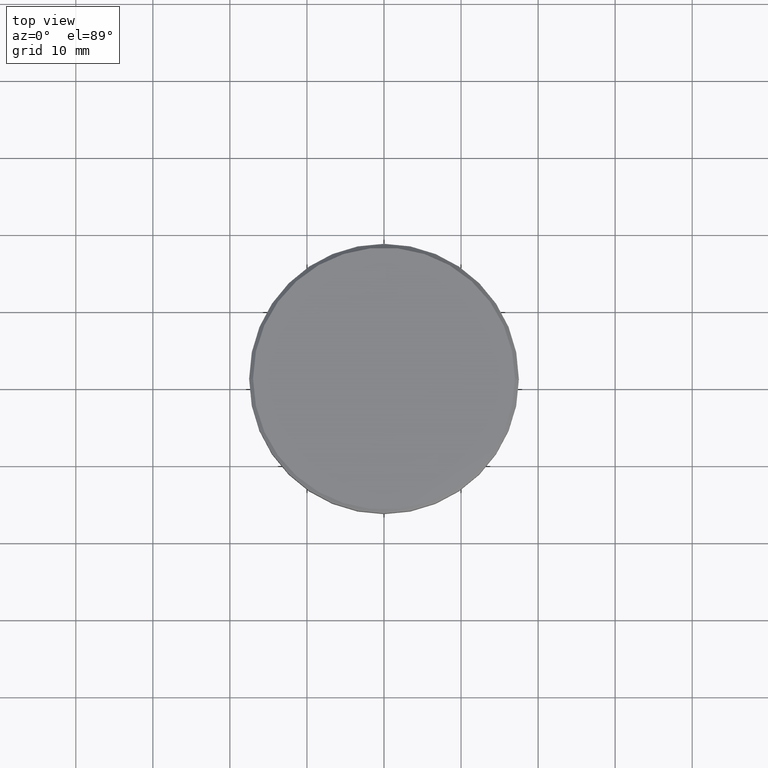
[diagram: clean part render]
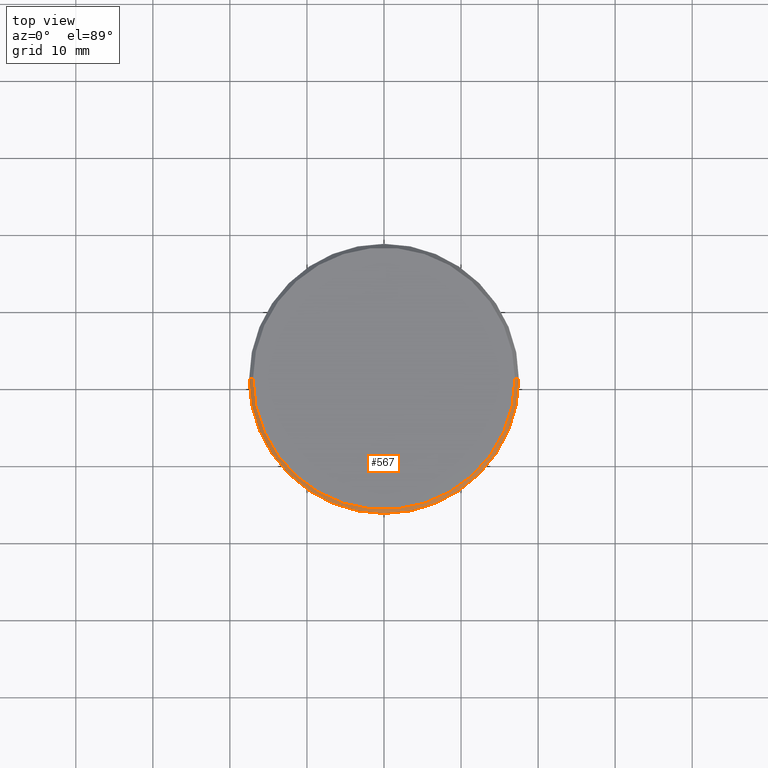
[diagram: same view with one face highlighted and labeled with its STEP entity id]
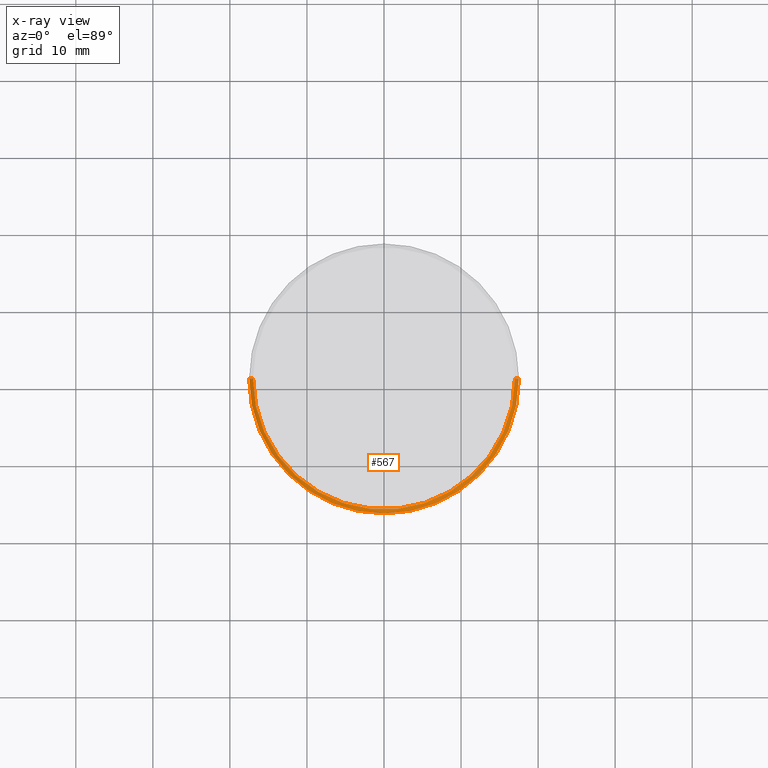
[diagram: x-ray of the same camera — body ghosted, the highlighted face saturated]
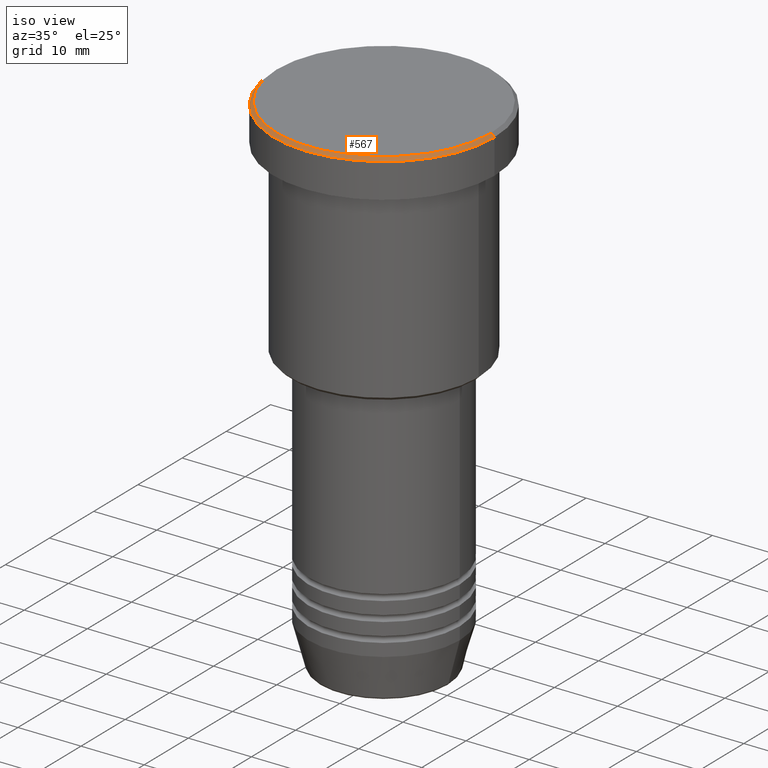
[diagram: same view with one face highlighted and labeled with its STEP entity id]
A machine part, top view. The second image highlights one B-rep face of the part: STEP entity #567.
The next image is the same camera in x-ray: the body ghosted, the highlighted face saturated — about 0% of this face is hidden behind the body in this view.
A second angle (iso view) of the same face is appended — the face is thin or edge-on in the first view.
In plain terms, the highlighted conical surface has half-angle 45 deg.
Its self-contained STEP definition (entity closure, byte-faithful):
#3 = ORIENTED_EDGE ( 'NONE', *, *, #921, .F. ) ;
#100 = CIRCLE ( 'NONE', #1054, 17.00000000000002842 ) ;
#109 = DIRECTION ( 'NONE',  ( -1.000000000000000000, 0.000000000000000000, 0.000000000000000000 ) ) ;
#115 = CARTESIAN_POINT ( 'NONE',  ( 0.000000000000000000, 0.000000000000000000, 0.000000000000000000 ) ) ;
#201 = CARTESIAN_POINT ( 'NONE',  ( 17.00000000000002842, 2.081899558550503830E-15, 0.000000000000000000 ) ) ;
#202 = CARTESIAN_POINT ( 'NONE',  ( -17.00000000000002842, 0.000000000000000000, 0.000000000000000000 ) ) ;
#208 = CARTESIAN_POINT ( 'NONE',  ( -17.50000000000000000, 2.143131898507868248E-15, -0.4999999999999864553 ) ) ;
#269 = VECTOR ( 'NONE', #611, 1000.000000000000000 ) ;
#301 = AXIS2_PLACEMENT_3D ( 'NONE', #788, #1170, #690 ) ;
#323 = AXIS2_PLACEMENT_3D ( 'NONE', #115, #489, #109 ) ;
#333 = CARTESIAN_POINT ( 'NONE',  ( 0.000000000000000000, 0.000000000000000000, 0.000000000000000000 ) ) ;
#350 = VERTEX_POINT ( 'NONE', #793 ) ;
#368 = EDGE_CURVE ( 'NONE', #1051, #548, #1074, .T. ) ;
#376 = FACE_OUTER_BOUND ( 'NONE', #638, .T. ) ;
#435 = EDGE_CURVE ( 'NONE', #604, #350, #100, .T. ) ;
#437 = LINE ( 'NONE', #711, #269 ) ;
#489 = DIRECTION ( 'NONE',  ( 0.000000000000000000, 0.000000000000000000, -1.000000000000000000 ) ) ;
#509 = DIRECTION ( 'NONE',  ( 1.000000000000000000, 0.000000000000000000, 0.000000000000000000 ) ) ;
#548 = VERTEX_POINT ( 'NONE', #208 ) ;
#567 = ADVANCED_FACE ( 'NONE', ( #376 ), #705, .T. ) ;
#604 = VERTEX_POINT ( 'NONE', #202 ) ;
#611 = DIRECTION ( 'NONE',  ( -0.7071067811865378028, 0.000000000000000000, -0.7071067811865573427 ) ) ;
#638 = EDGE_LOOP ( 'NONE', ( #3, #1103, #923, #1080 ) ) ;
#690 = DIRECTION ( 'NONE',  ( 1.000000000000000000, 0.000000000000000000, 0.000000000000000000 ) ) ;
#705 = CONICAL_SURFACE ( 'NONE', #323, 17.00000000000002842, 0.7853981633974346233 ) ;
#711 = CARTESIAN_POINT ( 'NONE',  ( -17.00000000000002842, 0.000000000000000000, 0.000000000000000000 ) ) ;
#788 = CARTESIAN_POINT ( 'NONE',  ( 0.000000000000000000, 0.000000000000000000, -0.4999999999999864553 ) ) ;
#793 = CARTESIAN_POINT ( 'NONE',  ( 17.00000000000002842, 2.112515728529186039E-15, 0.000000000000000000 ) ) ;
#811 = EDGE_CURVE ( 'NONE', #604, #548, #437, .T. ) ;
#818 = LINE ( 'NONE', #201, #1036 ) ;
#921 = EDGE_CURVE ( 'NONE', #350, #1051, #818, .T. ) ;
#923 = ORIENTED_EDGE ( 'NONE', *, *, #811, .T. ) ;
#927 = DIRECTION ( 'NONE',  ( 0.7071067811865378028, 8.659560562354814529E-17, -0.7071067811865573427 ) ) ;
#962 = DIRECTION ( 'NONE',  ( -0.000000000000000000, -0.000000000000000000, 1.000000000000000000 ) ) ;
#1036 = VECTOR ( 'NONE', #927, 1000.000000000000000 ) ;
#1051 = VERTEX_POINT ( 'NONE', #1174 ) ;
#1054 = AXIS2_PLACEMENT_3D ( 'NONE', #333, #962, #509 ) ;
#1074 = CIRCLE ( 'NONE', #301, 17.50000000000000000 ) ;
#1080 = ORIENTED_EDGE ( 'NONE', *, *, #368, .F. ) ;
#1103 = ORIENTED_EDGE ( 'NONE', *, *, #435, .F. ) ;
#1170 = DIRECTION ( 'NONE',  ( 0.000000000000000000, 0.000000000000000000, -1.000000000000000000 ) ) ;
#1174 = CARTESIAN_POINT ( 'NONE',  ( 17.50000000000000000, 0.000000000000000000, -0.4999999999999864553 ) ) ;